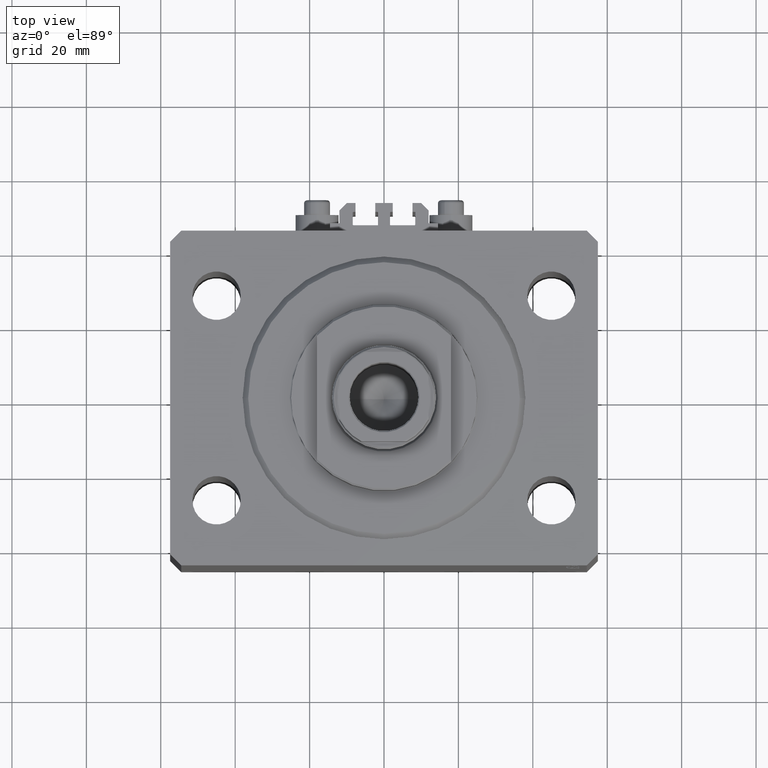
[diagram: clean part render]
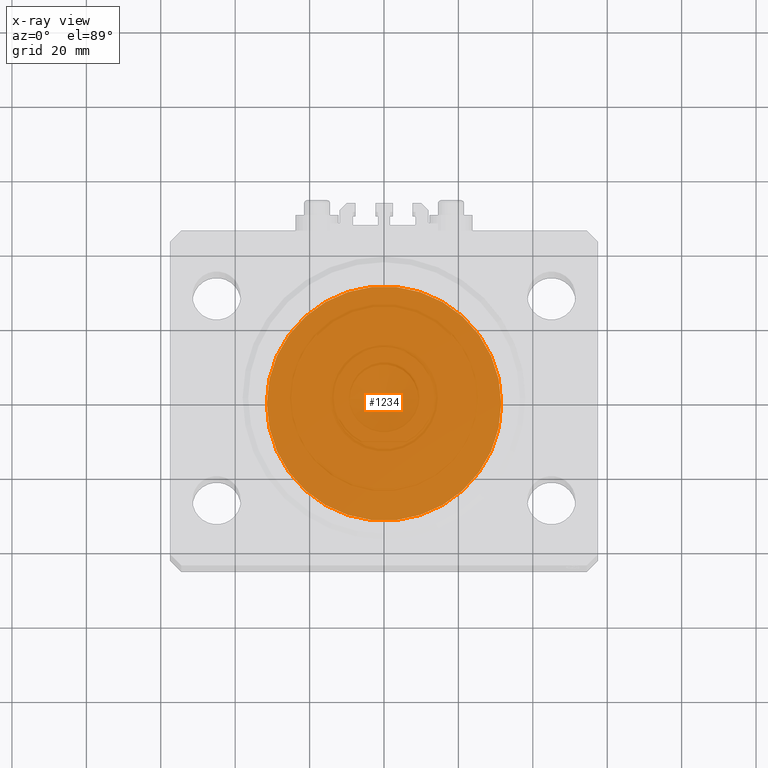
[diagram: x-ray — body ghosted, one internal face saturated and labeled with its STEP entity id]
A machine part, top view, then the same camera in x-ray: the body is ghosted and one INTERNAL B-rep face — a face not visible from any outside direction — is saturated and labeled: STEP entity #1234.
In plain terms, the highlighted planar face has unit normal (0, 0, 1).
Its self-contained STEP definition (entity closure, byte-faithful):
#1234 = ADVANCED_FACE ( 'NONE', ( #25807 ), #7627, .F. ) ;
#1765 = CIRCLE ( 'NONE', #43021, 31.50000000000000000 ) ;
#4031 = CARTESIAN_POINT ( 'NONE',  ( 0.000000000000000000, 0.000000000000000000, 0.000000000000000000 ) ) ;
#7627 = PLANE ( 'NONE',  #28931 ) ;
#11924 = DIRECTION ( 'NONE',  ( 0.000000000000000000, 0.000000000000000000, 1.000000000000000000 ) ) ;
#13952 = CARTESIAN_POINT ( 'NONE',  ( 0.000000000000000000, 0.000000000000000000, 0.000000000000000000 ) ) ;
#14655 = ORIENTED_EDGE ( 'NONE', *, *, #29571, .F. ) ;
#15343 = VERTEX_POINT ( 'NONE', #43140 ) ;
#21764 = DIRECTION ( 'NONE',  ( 1.000000000000000000, 0.000000000000000000, 0.000000000000000000 ) ) ;
#24284 = CIRCLE ( 'NONE', #27360, 31.50000000000000000 ) ;
#25349 = DIRECTION ( 'NONE',  ( 0.000000000000000000, 0.000000000000000000, 1.000000000000000000 ) ) ;
#25807 = FACE_OUTER_BOUND ( 'NONE', #31996, .T. ) ;
#26515 = DIRECTION ( 'NONE',  ( 1.000000000000000000, 0.000000000000000000, -0.000000000000000000 ) ) ;
#27360 = AXIS2_PLACEMENT_3D ( 'NONE', #13952, #39802, #29503 ) ;
#28931 = AXIS2_PLACEMENT_3D ( 'NONE', #4031, #11924, #26515 ) ;
#29503 = DIRECTION ( 'NONE',  ( 1.000000000000000000, 0.000000000000000000, 0.000000000000000000 ) ) ;
#29571 = EDGE_CURVE ( 'NONE', #45335, #15343, #24284, .T. ) ;
#31996 = EDGE_LOOP ( 'NONE', ( #32372, #14655 ) ) ;
#32372 = ORIENTED_EDGE ( 'NONE', *, *, #38057, .F. ) ;
#37078 = CARTESIAN_POINT ( 'NONE',  ( 0.000000000000000000, 0.000000000000000000, 0.000000000000000000 ) ) ;
#38057 = EDGE_CURVE ( 'NONE', #15343, #45335, #1765, .T. ) ;
#39802 = DIRECTION ( 'NONE',  ( 0.000000000000000000, 0.000000000000000000, 1.000000000000000000 ) ) ;
#42016 = CARTESIAN_POINT ( 'NONE',  ( 31.50000000000000000, 3.857637417314162689E-15, 0.000000000000000000 ) ) ;
#43021 = AXIS2_PLACEMENT_3D ( 'NONE', #37078, #25349, #21764 ) ;
#43140 = CARTESIAN_POINT ( 'NONE',  ( -31.50000000000000000, 0.000000000000000000, 0.000000000000000000 ) ) ;
#45335 = VERTEX_POINT ( 'NONE', #42016 ) ;